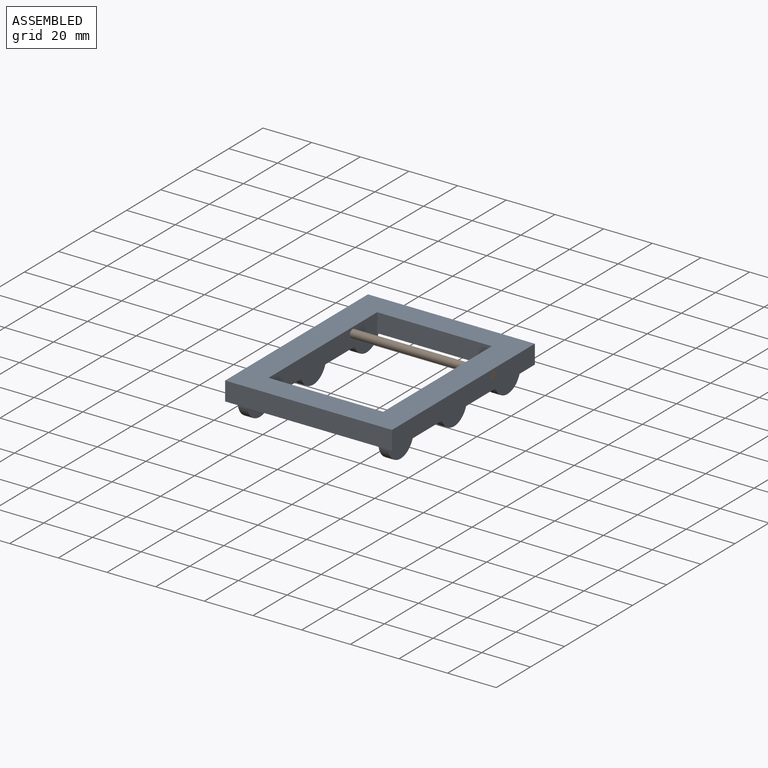
[diagram: assembled view]
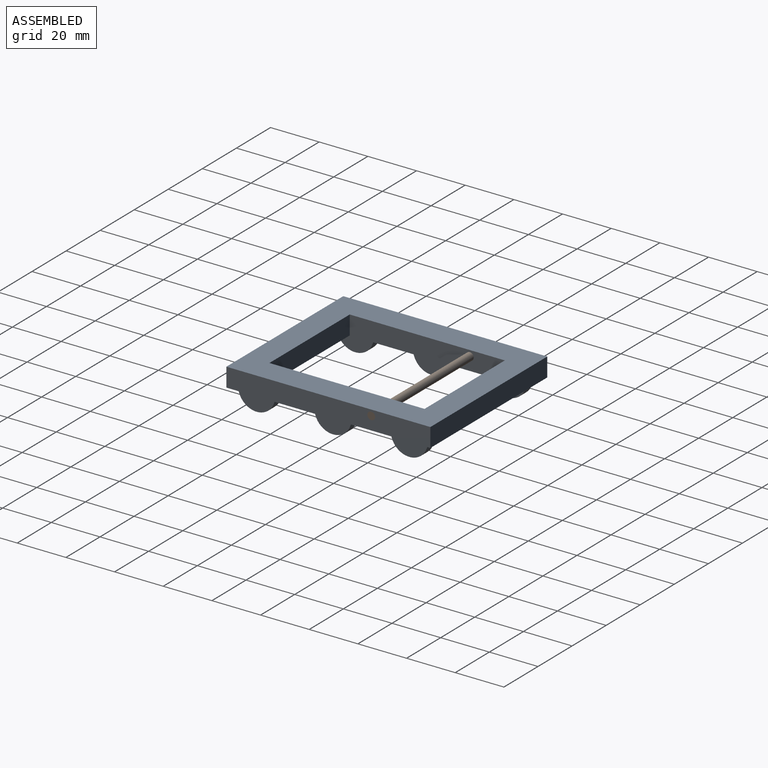
[diagram: assembled view, second angle]
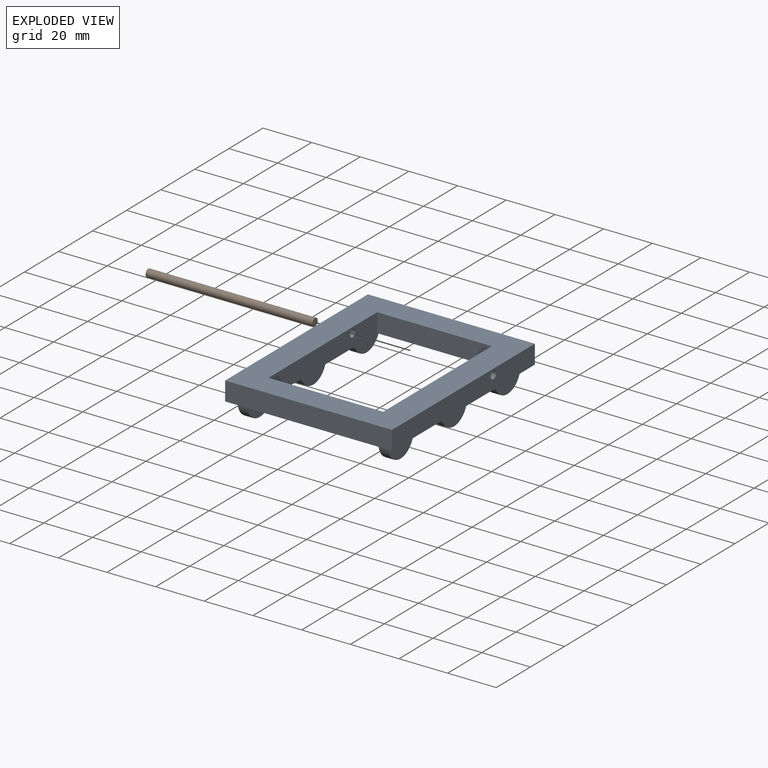
[diagram: exploded view]
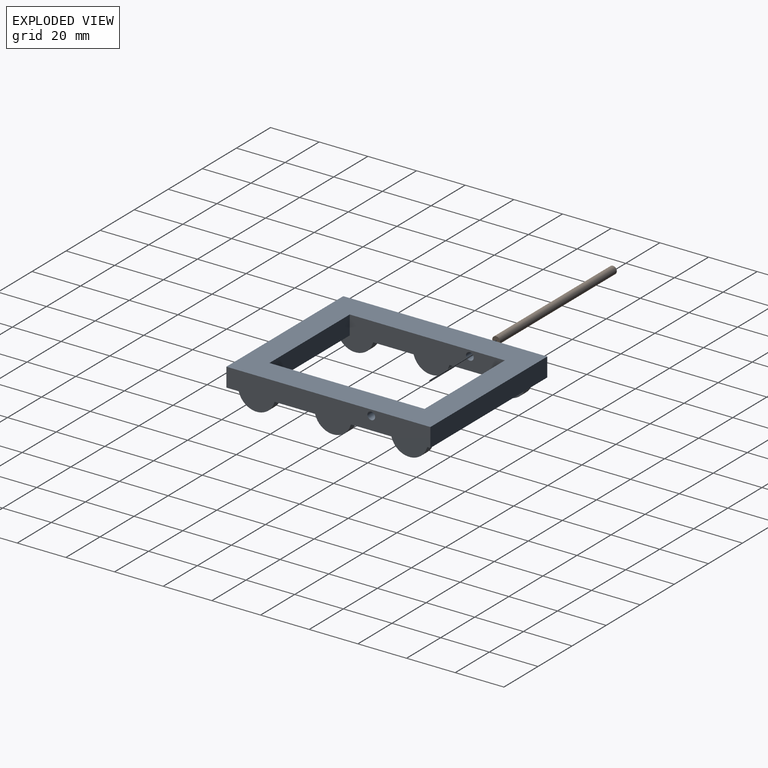
[diagram: exploded view, second angle]
ASSEMBLY  parts=2 mates=2
PART A: 30 faces, bbox 68.6x83.8x15.4 mm
  f0: plane 63.75x7.77mm, normal (1,0,0), area 487.6mm2, adj f12,f13,f14,f17,f29
  f1: plane 63.75x7.77mm, normal (-1,0,0), area 487.6mm2, adj f12,f13,f14,f28,f29
  f2: cylinder r=7.62mm len=15.24mm, axis (-1,0,0), area 91.2mm2, adj f3,f4,f14
  f3: plane 15.24x7.62mm, normal (-1,0,0), area 91.2mm2, adj f2,f14
  f4: plane 15.24x7.62mm, normal (1,0,0), area 91.2mm2, adj f2,f14
  f5: cylinder r=7.62mm len=15.24mm, axis (-1,0,0), area 91.2mm2, adj f6,f7,f14
  f6: plane 15.24x7.62mm, normal (-1,0,0), area 91.2mm2, adj f5,f14
  f7: plane 15.24x7.62mm, normal (1,0,0), area 91.2mm2, adj f5,f14
  f8: plane 15.24x7.62mm, normal (1,0,0), area 91.2mm2, adj f14,f16
  f9: plane 68.58x7.77mm, normal (0,1,0), area 533mm2, adj f10,f13,f14,f25
  f10: plane 83.82x7.77mm, normal (-1,0,0), area 643.6mm2, adj f9,f11,f13,f14,f17
  f11: plane 68.58x7.77mm, normal (0,-1,0), area 533mm2, adj f10,f13,f14,f25
  f12: plane 47.14x7.77mm, normal (0,1,0), area 366.4mm2, adj f0,f1,f13,f14
  f13: plane 83.82x68.58mm, normal (0,0,1), area 2742.9mm2, adj f0,f1,f9,f10,f11,f12,f25,f29
  f14: plane 83.82x68.58mm, normal (0,0,-1), area 2394.5mm2, adj f0,f1,f2,f3,f4,f5,f6,f7
  f15: plane 15.24x7.62mm, normal (-1,0,0), area 91.2mm2, adj f14,f16
  f16: cylinder r=7.62mm len=15.24mm, axis (-1,0,0), area 91.2mm2, adj f8,f14,f15
  f17: cylinder r=1.59mm len=10.72mm, axis (-1,0,0), area 106.9mm2, adj f0,f10
  f18: cylinder r=7.62mm len=15.24mm, axis (1,0,0), area 91.2mm2, adj f14,f19,f20
  f19: plane 15.24x7.62mm, normal (1,0,0), area 91.2mm2, adj f14,f18
  f20: plane 15.24x7.62mm, normal (-1,0,0), area 91.2mm2, adj f14,f18
  f21: cylinder r=7.62mm len=15.24mm, axis (1,0,0), area 91.2mm2, adj f14,f22,f23
  f22: plane 15.24x7.62mm, normal (1,0,0), area 91.2mm2, adj f14,f21
  f23: plane 15.24x7.62mm, normal (-1,0,0), area 91.2mm2, adj f14,f21
  f24: plane 15.24x7.62mm, normal (-1,0,0), area 91.2mm2, adj f14,f27
  f25: plane 83.82x7.77mm, normal (1,0,0), area 643.6mm2, adj f9,f11,f13,f14,f28
  f26: plane 15.24x7.62mm, normal (1,0,0), area 91.2mm2, adj f14,f27
  f27: cylinder r=7.62mm len=15.24mm, axis (1,0,0), area 91.2mm2, adj f14,f24,f26
  f28: cylinder r=1.59mm len=10.72mm, axis (1,0,0), area 106.9mm2, adj f1,f25
  f29: plane 47.14x7.77mm, normal (0,-1,0), area 366.4mm2, adj f0,f1,f13,f14
PART B: 3 faces, bbox 68.6x3.2x3.2 mm
  f0: cylinder r=1.59mm len=68.58mm, axis (-1,0,0), area 684.1mm2, adj f1,f2
  f1: plane 3.18x3.18mm, normal (1,0,0), area 7.9mm2, adj f0
  f2: plane 3.18x3.18mm, normal (-1,0,0), area 7.9mm2, adj f0
PLACE A t=(0.17,-0.02,-0.26)mm fixed
PLACE B t=(-34.12,17.59,5.17)mm
MATE cylindrical B.f0 <-> A.f17  axis (1,0,0) through (34.46,17.59,5.17)mm
MATE planar A.f17 <-> A.f25  axis (1,0,0) through (34.46,17.59,5.17)mm
